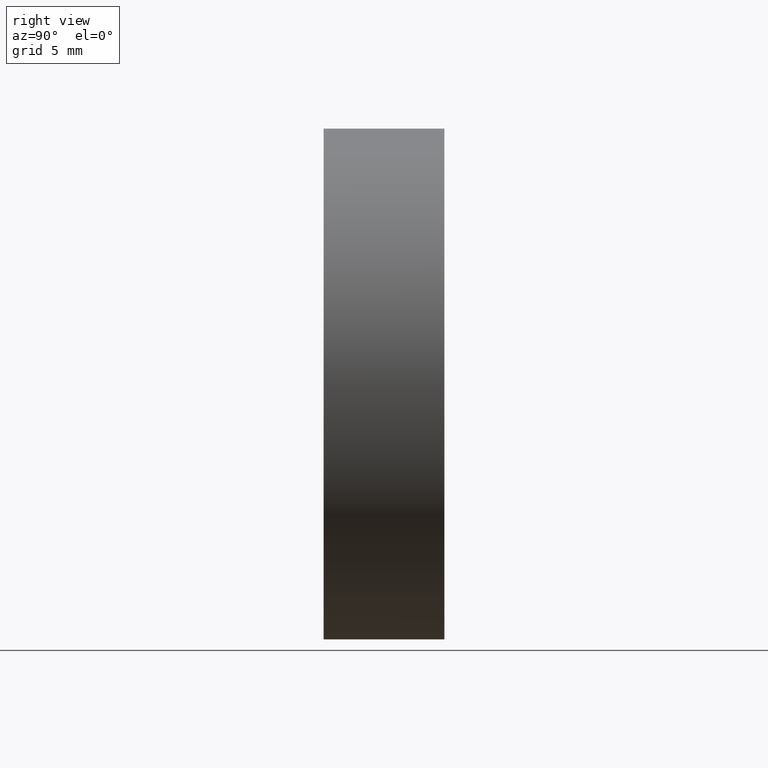
[diagram: clean part render]
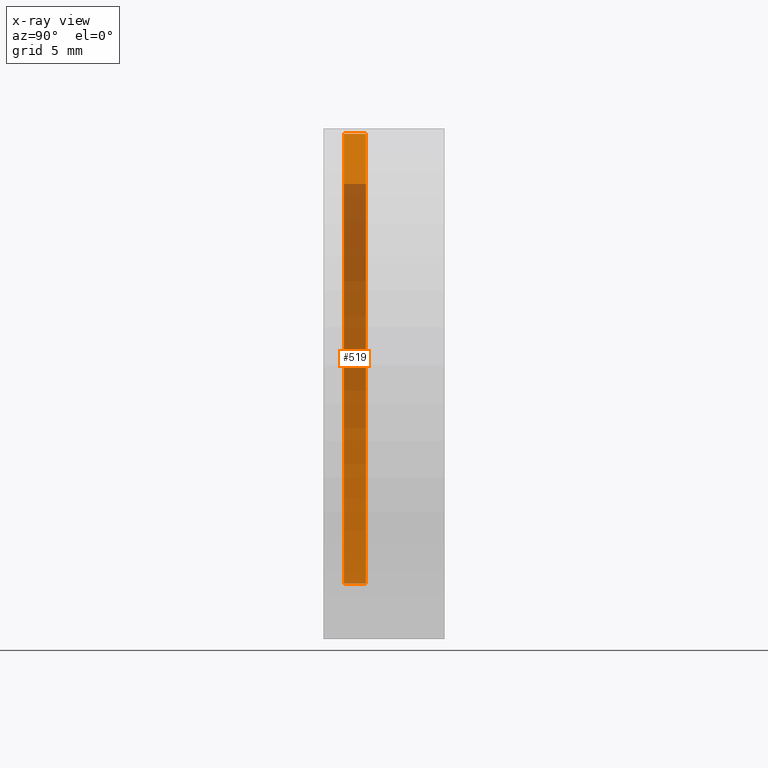
[diagram: x-ray — body ghosted, one internal face saturated and labeled with its STEP entity id]
A machine part, right view, then the same camera in x-ray: the body is ghosted and one INTERNAL B-rep face — a face not visible from any outside direction — is saturated and labeled: STEP entity #519.
In plain terms, the highlighted cylindrical surface (partial cylindrical patch) has radius 12.45 mm, axis along (-0, -1, 0).
Its self-contained STEP definition (entity closure, byte-faithful):
#19 = DIRECTION ( 'NONE',  ( 0.0000000000000000000, 1.000000000000000000, 0.0000000000000000000 ) ) ;
#57 = CARTESIAN_POINT ( 'NONE',  ( -42.09958859723342073, -7.259296399802728672, -9.931425604720907074 ) ) ;
#61 = ORIENTED_EDGE ( 'NONE', *, *, #741, .F. ) ;
#66 = DIRECTION ( 'NONE',  ( -0.0000000000000000000, -1.000000000000000000, 0.0000000000000000000 ) ) ;
#73 = DIRECTION ( 'NONE',  ( 0.0000000000000000000, 1.000000000000000000, 0.0000000000000000000 ) ) ;
#172 = CYLINDRICAL_SURFACE ( 'NONE', #648, 12.44999999999999929 ) ;
#216 = CARTESIAN_POINT ( 'NONE',  ( -34.59164044491551238, -7.259296399802728672, 0.0000000000000000000 ) ) ;
#226 = EDGE_CURVE ( 'NONE', #822, #497, #623, .T. ) ;
#242 = EDGE_LOOP ( 'NONE', ( #61, #354, #622, #853 ) ) ;
#324 = CARTESIAN_POINT ( 'NONE',  ( -34.59164044491551238, -6.159296399802728139, 0.0000000000000000000 ) ) ;
#332 = LINE ( 'NONE', #714, #541 ) ;
#341 = CARTESIAN_POINT ( 'NONE',  ( -27.08369229259760402, -7.259296399802728672, 9.931425604720907074 ) ) ;
#345 = CIRCLE ( 'NONE', #689, 12.44999999999999929 ) ;
#348 = DIRECTION ( 'NONE',  ( 0.6030480443628842835, 0.0000000000000000000, 0.7977048678490690214 ) ) ;
#354 = ORIENTED_EDGE ( 'NONE', *, *, #226, .F. ) ;
#398 = CARTESIAN_POINT ( 'NONE',  ( -27.08369229259760402, -6.159296399802728139, 9.931425604720908851 ) ) ;
#402 = EDGE_CURVE ( 'NONE', #822, #668, #332, .T. ) ;
#420 = CARTESIAN_POINT ( 'NONE',  ( -27.08369229259760402, -6.159296399802728139, 9.931425604720907074 ) ) ;
#454 = VECTOR ( 'NONE', #66, 1000.000000000000000 ) ;
#497 = VERTEX_POINT ( 'NONE', #420 ) ;
#519 = ADVANCED_FACE ( 'NONE', ( #801 ), #172, .T. ) ;
#520 = DIRECTION ( 'NONE',  ( -0.0000000000000000000, -1.000000000000000000, 0.0000000000000000000 ) ) ;
#536 = LINE ( 'NONE', #398, #454 ) ;
#541 = VECTOR ( 'NONE', #520, 1000.000000000000000 ) ;
#622 = ORIENTED_EDGE ( 'NONE', *, *, #402, .T. ) ;
#623 = CIRCLE ( 'NONE', #644, 12.44999999999999929 ) ;
#624 = DIRECTION ( 'NONE',  ( 0.6030480443628842835, 0.0000000000000000000, 0.7977048678490690214 ) ) ;
#644 = AXIS2_PLACEMENT_3D ( 'NONE', #671, #73, #348 ) ;
#648 = AXIS2_PLACEMENT_3D ( 'NONE', #324, #654, #713 ) ;
#654 = DIRECTION ( 'NONE',  ( -0.0000000000000000000, -1.000000000000000000, 0.0000000000000000000 ) ) ;
#668 = VERTEX_POINT ( 'NONE', #57 ) ;
#671 = CARTESIAN_POINT ( 'NONE',  ( -34.59164044491551238, -6.159296399802728139, 0.0000000000000000000 ) ) ;
#689 = AXIS2_PLACEMENT_3D ( 'NONE', #216, #19, #624 ) ;
#713 = DIRECTION ( 'NONE',  ( -0.6030480443628842835, 0.0000000000000000000, -0.7977048678490690214 ) ) ;
#714 = CARTESIAN_POINT ( 'NONE',  ( -42.09958859723342073, -6.159296399802728139, -9.931425604720908851 ) ) ;
#741 = EDGE_CURVE ( 'NONE', #497, #743, #536, .T. ) ;
#743 = VERTEX_POINT ( 'NONE', #341 ) ;
#801 = FACE_OUTER_BOUND ( 'NONE', #242, .T. ) ;
#812 = CARTESIAN_POINT ( 'NONE',  ( -42.09958859723342073, -6.159296399802728139, -9.931425604720907074 ) ) ;
#822 = VERTEX_POINT ( 'NONE', #812 ) ;
#842 = EDGE_CURVE ( 'NONE', #668, #743, #345, .T. ) ;
#853 = ORIENTED_EDGE ( 'NONE', *, *, #842, .T. ) ;